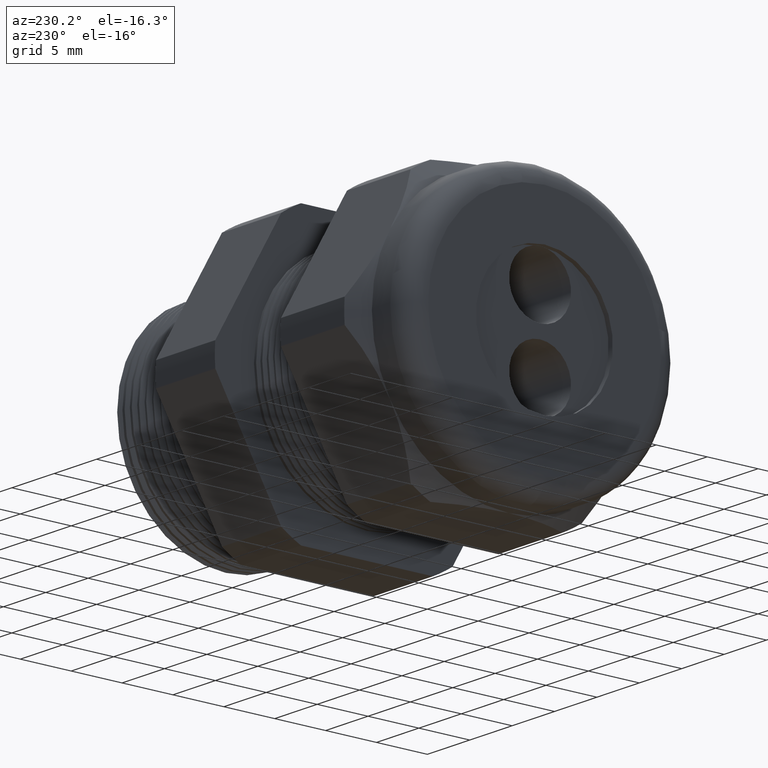
[diagram: clean part render]
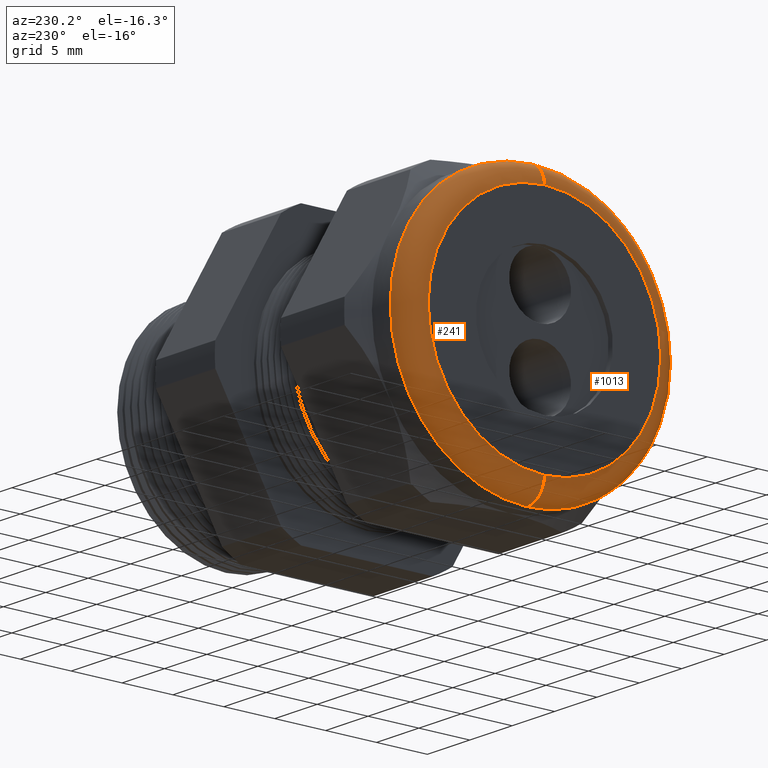
[diagram: same view with one multi-face feature highlighted, each face labeled with its STEP entity id]
A machine part, auxiliary view. The highlighted faces form ONE feature: a constant-radius fillet chain: 2 tangent blend faces with common blend radius 2.032 mm. The faces share edges in the B-rep.
Their STEP definitions:
[1] entity #1013 (Torus):
#245 = VERTEX_POINT ( 'NONE', #2085 ) ;
#246 = VERTEX_POINT ( 'NONE', #2084 ) ;
#248 = EDGE_CURVE ( 'NONE', #245, #249, #2083, .T. ) ;
#249 = VERTEX_POINT ( 'NONE', #2078 ) ;
#304 = VERTEX_POINT ( 'NONE', #2216 ) ;
#306 = EDGE_CURVE ( 'NONE', #246, #304, #2214, .T. ) ;
#803 = EDGE_CURVE ( 'NONE', #246, #245, #3193, .T. ) ;
#869 = EDGE_CURVE ( 'NONE', #249, #304, #3325, .T. ) ;
#1013 = ADVANCED_FACE ( 'NONE', ( #3575 ), #3574, .T. ) ;
#1014 = EDGE_LOOP ( 'NONE', ( #1015, #1016, #1017, #1069 ) ) ;
#1015 = ORIENTED_EDGE ( 'NONE', *, *, #248, .F. ) ;
#1016 = ORIENTED_EDGE ( 'NONE', *, *, #803, .F. ) ;
#1017 = ORIENTED_EDGE ( 'NONE', *, *, #306, .T. ) ;
#1069 = ORIENTED_EDGE ( 'NONE', *, *, #869, .F. ) ;
#2078 = CARTESIAN_POINT ( 'NONE',  ( -1.410000000000000400, 6.000769315822029800E-017, -0.4499999999999999600 ) ) ;
#2079 = DIRECTION ( 'NONE',  ( 0.0000000000000000000, -1.224646799147353900E-016, 1.000000000000000000 ) ) ;
#2080 = DIRECTION ( 'NONE',  ( 0.0000000000000000000, 1.000000000000000000, 1.224646799147353200E-016 ) ) ;
#2081 = CARTESIAN_POINT ( 'NONE',  ( -1.330000000000000300, 5.510910596163088900E-017, -0.4499999999999999600 ) ) ;
#2082 = AXIS2_PLACEMENT_3D ( 'NONE', #2081, #2080, #2079 ) ;
#2083 = CIRCLE ( 'NONE', #2082, 0.07999999999999996000 ) ;
#2084 = CARTESIAN_POINT ( 'NONE',  ( -1.330000000000000300, 6.490628035480971200E-017, 0.5299999999999999200 ) ) ;
#2085 = CARTESIAN_POINT ( 'NONE',  ( -1.330000000000000300, 0.0000000000000000000, -0.5299999999999999200 ) ) ;
#2210 = DIRECTION ( 'NONE',  ( 0.0000000000000000000, 0.0000000000000000000, -1.000000000000000000 ) ) ;
#2211 = DIRECTION ( 'NONE',  ( 0.0000000000000000000, -1.000000000000000000, 0.0000000000000000000 ) ) ;
#2212 = CARTESIAN_POINT ( 'NONE',  ( -1.330000000000000300, 0.0000000000000000000, 0.4499999999999999600 ) ) ;
#2213 = AXIS2_PLACEMENT_3D ( 'NONE', #2212, #2211, #2210 ) ;
#2214 = CIRCLE ( 'NONE', #2213, 0.07999999999999996000 ) ;
#2216 = CARTESIAN_POINT ( 'NONE',  ( -1.410000000000000400, 0.0000000000000000000, 0.4499999999999999600 ) ) ;
#3187 = CARTESIAN_POINT ( 'NONE',  ( -1.330000000000000300, 0.0000000000000000000, 0.0000000000000000000 ) ) ;
#3188 = AXIS2_PLACEMENT_3D ( 'NONE', #3187, #3250, #3249 ) ;
#3193 = CIRCLE ( 'NONE', #3188, 0.5299999999999999200 ) ;
#3249 = DIRECTION ( 'NONE',  ( 0.0000000000000000000, 0.0000000000000000000, 1.000000000000000000 ) ) ;
#3250 = DIRECTION ( 'NONE',  ( 1.000000000000000000, 0.0000000000000000000, 0.0000000000000000000 ) ) ;
#3321 = DIRECTION ( 'NONE',  ( 0.0000000000000000000, 0.0000000000000000000, 1.000000000000000000 ) ) ;
#3322 = DIRECTION ( 'NONE',  ( -1.000000000000000000, 0.0000000000000000000, 0.0000000000000000000 ) ) ;
#3323 = CARTESIAN_POINT ( 'NONE',  ( -1.410000000000000400, 0.0000000000000000000, 0.0000000000000000000 ) ) ;
#3324 = AXIS2_PLACEMENT_3D ( 'NONE', #3323, #3322, #3321 ) ;
#3325 = CIRCLE ( 'NONE', #3324, 0.4499999999999999600 ) ;
#3570 = DIRECTION ( 'NONE',  ( 0.0000000000000000000, 0.0000000000000000000, 1.000000000000000000 ) ) ;
#3571 = DIRECTION ( 'NONE',  ( -1.000000000000000000, 0.0000000000000000000, 0.0000000000000000000 ) ) ;
#3572 = CARTESIAN_POINT ( 'NONE',  ( -1.330000000000000300, 0.0000000000000000000, 0.0000000000000000000 ) ) ;
#3573 = AXIS2_PLACEMENT_3D ( 'NONE', #3572, #3571, #3570 ) ;
#3574 = TOROIDAL_SURFACE ( 'NONE', #3573, 0.4499999999999999600, 0.08000000000000000200 ) ;
#3575 = FACE_OUTER_BOUND ( 'NONE', #1014, .T. ) ;
[2] entity #241 (Torus):
#241 = ADVANCED_FACE ( 'NONE', ( #2096 ), #2094, .T. ) ;
#242 = EDGE_LOOP ( 'NONE', ( #243, #247, #250, #305 ) ) ;
#243 = ORIENTED_EDGE ( 'NONE', *, *, #244, .F. ) ;
#244 = EDGE_CURVE ( 'NONE', #245, #246, #2090, .T. ) ;
#245 = VERTEX_POINT ( 'NONE', #2085 ) ;
#246 = VERTEX_POINT ( 'NONE', #2084 ) ;
#247 = ORIENTED_EDGE ( 'NONE', *, *, #248, .T. ) ;
#248 = EDGE_CURVE ( 'NONE', #245, #249, #2083, .T. ) ;
#249 = VERTEX_POINT ( 'NONE', #2078 ) ;
#250 = ORIENTED_EDGE ( 'NONE', *, *, #251, .F. ) ;
#251 = EDGE_CURVE ( 'NONE', #304, #249, #2077, .T. ) ;
#304 = VERTEX_POINT ( 'NONE', #2216 ) ;
#305 = ORIENTED_EDGE ( 'NONE', *, *, #306, .F. ) ;
#306 = EDGE_CURVE ( 'NONE', #246, #304, #2214, .T. ) ;
#2073 = DIRECTION ( 'NONE',  ( 0.0000000000000000000, 0.0000000000000000000, 1.000000000000000000 ) ) ;
#2074 = DIRECTION ( 'NONE',  ( -1.000000000000000000, 0.0000000000000000000, 0.0000000000000000000 ) ) ;
#2075 = CARTESIAN_POINT ( 'NONE',  ( -1.410000000000000400, 0.0000000000000000000, 0.0000000000000000000 ) ) ;
#2076 = AXIS2_PLACEMENT_3D ( 'NONE', #2075, #2074, #2073 ) ;
#2077 = CIRCLE ( 'NONE', #2076, 0.4499999999999999600 ) ;
#2078 = CARTESIAN_POINT ( 'NONE',  ( -1.410000000000000400, 6.000769315822029800E-017, -0.4499999999999999600 ) ) ;
#2079 = DIRECTION ( 'NONE',  ( 0.0000000000000000000, -1.224646799147353900E-016, 1.000000000000000000 ) ) ;
#2080 = DIRECTION ( 'NONE',  ( 0.0000000000000000000, 1.000000000000000000, 1.224646799147353200E-016 ) ) ;
#2081 = CARTESIAN_POINT ( 'NONE',  ( -1.330000000000000300, 5.510910596163088900E-017, -0.4499999999999999600 ) ) ;
#2082 = AXIS2_PLACEMENT_3D ( 'NONE', #2081, #2080, #2079 ) ;
#2083 = CIRCLE ( 'NONE', #2082, 0.07999999999999996000 ) ;
#2084 = CARTESIAN_POINT ( 'NONE',  ( -1.330000000000000300, 6.490628035480971200E-017, 0.5299999999999999200 ) ) ;
#2085 = CARTESIAN_POINT ( 'NONE',  ( -1.330000000000000300, 0.0000000000000000000, -0.5299999999999999200 ) ) ;
#2086 = DIRECTION ( 'NONE',  ( 0.0000000000000000000, 0.0000000000000000000, 1.000000000000000000 ) ) ;
#2087 = DIRECTION ( 'NONE',  ( 1.000000000000000000, 0.0000000000000000000, 0.0000000000000000000 ) ) ;
#2088 = CARTESIAN_POINT ( 'NONE',  ( -1.330000000000000300, 0.0000000000000000000, 0.0000000000000000000 ) ) ;
#2089 = AXIS2_PLACEMENT_3D ( 'NONE', #2088, #2087, #2086 ) ;
#2090 = CIRCLE ( 'NONE', #2089, 0.5299999999999999200 ) ;
#2091 = DIRECTION ( 'NONE',  ( 0.0000000000000000000, 0.0000000000000000000, 1.000000000000000000 ) ) ;
#2092 = DIRECTION ( 'NONE',  ( -1.000000000000000000, 0.0000000000000000000, 0.0000000000000000000 ) ) ;
#2093 = AXIS2_PLACEMENT_3D ( 'NONE', #2095, #2092, #2091 ) ;
#2094 = TOROIDAL_SURFACE ( 'NONE', #2093, 0.4499999999999999600, 0.08000000000000000200 ) ;
#2095 = CARTESIAN_POINT ( 'NONE',  ( -1.330000000000000300, 0.0000000000000000000, 0.0000000000000000000 ) ) ;
#2096 = FACE_OUTER_BOUND ( 'NONE', #242, .T. ) ;
#2210 = DIRECTION ( 'NONE',  ( 0.0000000000000000000, 0.0000000000000000000, -1.000000000000000000 ) ) ;
#2211 = DIRECTION ( 'NONE',  ( 0.0000000000000000000, -1.000000000000000000, 0.0000000000000000000 ) ) ;
#2212 = CARTESIAN_POINT ( 'NONE',  ( -1.330000000000000300, 0.0000000000000000000, 0.4499999999999999600 ) ) ;
#2213 = AXIS2_PLACEMENT_3D ( 'NONE', #2212, #2211, #2210 ) ;
#2214 = CIRCLE ( 'NONE', #2213, 0.07999999999999996000 ) ;
#2216 = CARTESIAN_POINT ( 'NONE',  ( -1.410000000000000400, 0.0000000000000000000, 0.4499999999999999600 ) ) ;